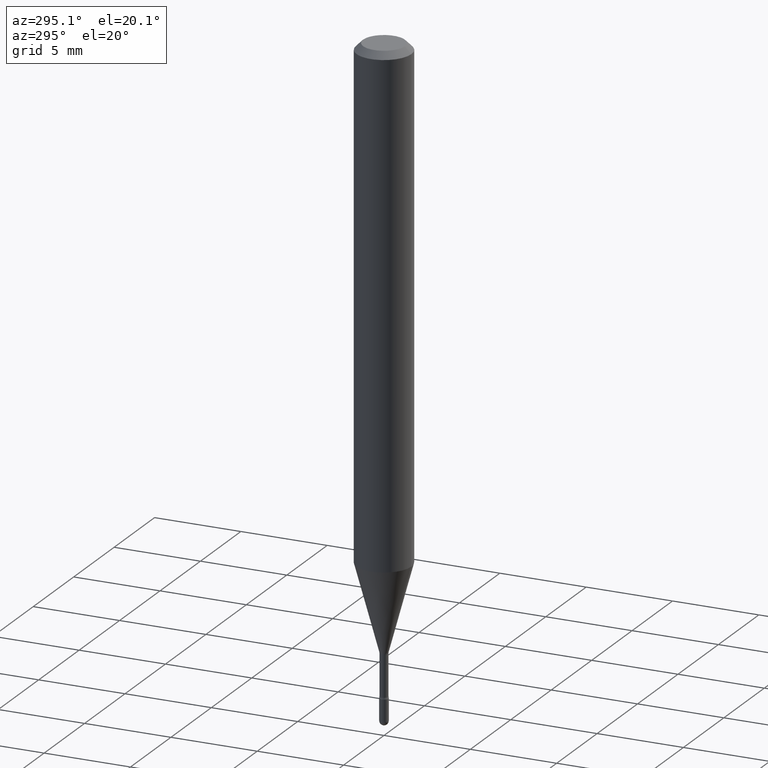
[diagram: clean part render]
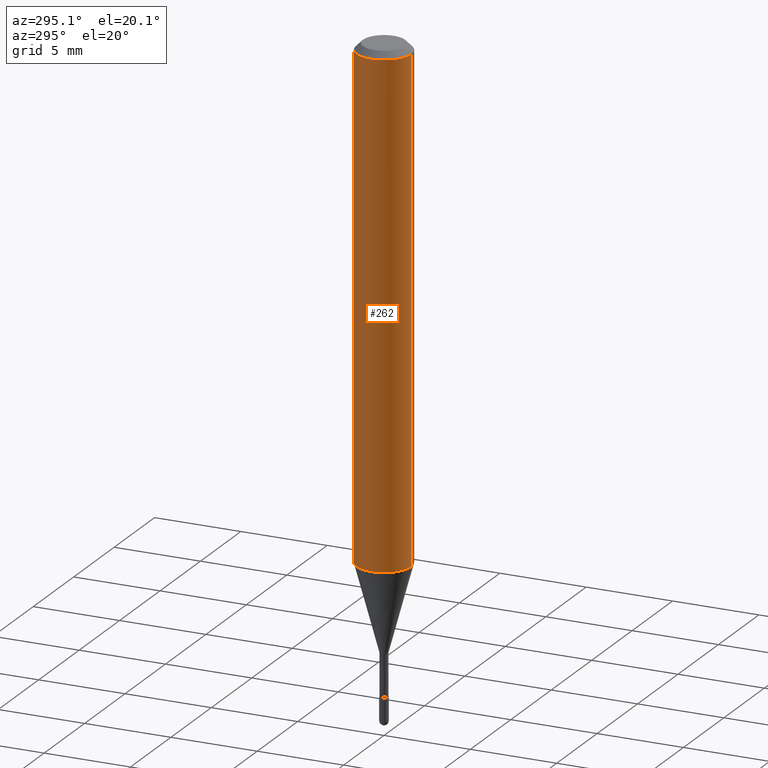
[diagram: same view with one face highlighted and labeled with its STEP entity id]
A machine part, auxiliary view. The second image highlights one B-rep face of the part: STEP entity #262.
In plain terms, the highlighted cylindrical surface (edge-blend (fillet) strip) has radius 1.5875 mm, axis along (-0, 0, 1).
Its self-contained STEP definition (entity closure, byte-faithful):
#31 = ORIENTED_EDGE ( 'NONE', *, *, #386, .F. ) ;
#46 = FACE_OUTER_BOUND ( 'NONE', #294, .T. ) ;
#63 = CARTESIAN_POINT ( 'NONE',  ( -4.364351673553916201E-16, -0.06250000000000000000, 6.962891176878747988E-16 ) ) ;
#89 = CYLINDRICAL_SURFACE ( 'NONE', #95, 0.06250000000000000000 ) ;
#95 = AXIS2_PLACEMENT_3D ( 'NONE', #266, #227, #477 ) ;
#106 = VECTOR ( 'NONE', #406, 39.37007874015748143 ) ;
#120 = AXIS2_PLACEMENT_3D ( 'NONE', #127, #173, #526 ) ;
#127 = CARTESIAN_POINT ( 'NONE',  ( 2.792328796693690568E-29, -3.986637440734242640E-15, -1.141828102118093380 ) ) ;
#130 = CARTESIAN_POINT ( 'NONE',  ( -4.364351673553637142E-16, -0.06250000000000398293, -1.141828102118092936 ) ) ;
#137 = LINE ( 'NONE', #409, #106 ) ;
#141 = VERTEX_POINT ( 'NONE', #265 ) ;
#143 = DIRECTION ( 'NONE',  ( -2.445489642016968435E-29, 3.491451500746060163E-15, 1.000000000000000000 ) ) ;
#173 = DIRECTION ( 'NONE',  ( -2.445489642016968435E-29, 3.491451500746060163E-15, 1.000000000000000000 ) ) ;
#181 = LINE ( 'NONE', #63, #271 ) ;
#188 = CARTESIAN_POINT ( 'NONE',  ( 4.440892098500903249E-16, 0.06249999999999600320, -1.141828102118093602 ) ) ;
#196 = AXIS2_PLACEMENT_3D ( 'NONE', #541, #143, #534 ) ;
#199 = EDGE_CURVE ( 'NONE', #423, #248, #395, .T. ) ;
#227 = DIRECTION ( 'NONE',  ( -2.445489642016968435E-29, 3.491451500746060163E-15, 1.000000000000000000 ) ) ;
#237 = DIRECTION ( 'NONE',  ( -2.445489642016968435E-29, 3.491451500746059769E-15, 1.000000000000000000 ) ) ;
#242 = ORIENTED_EDGE ( 'NONE', *, *, #340, .F. ) ;
#248 = VERTEX_POINT ( 'NONE', #130 ) ;
#252 = ORIENTED_EDGE ( 'NONE', *, *, #331, .T. ) ;
#262 = ADVANCED_FACE ( 'NONE', ( #46 ), #89, .T. ) ;
#265 = CARTESIAN_POINT ( 'NONE',  ( -4.364351673553912750E-16, -0.06250000000000005551, -0.01499999999999986587 ) ) ;
#266 = CARTESIAN_POINT ( 'NONE',  ( -1.169113584055446105E-44, 1.669184350826100908E-30, 4.780733988912460139E-16 ) ) ;
#271 = VECTOR ( 'NONE', #237, 39.37007874015748143 ) ;
#294 = EDGE_LOOP ( 'NONE', ( #242, #559, #252, #31 ) ) ;
#327 = CARTESIAN_POINT ( 'NONE',  ( 4.440892098500906207E-16, 0.06249999999999993755, -0.01500000000000030129 ) ) ;
#331 = EDGE_CURVE ( 'NONE', #248, #141, #181, .T. ) ;
#340 = EDGE_CURVE ( 'NONE', #423, #371, #137, .T. ) ;
#371 = VERTEX_POINT ( 'NONE', #327 ) ;
#386 = EDGE_CURVE ( 'NONE', #371, #141, #433, .T. ) ;
#395 = CIRCLE ( 'NONE', #120, 0.06250000000000000000 ) ;
#406 = DIRECTION ( 'NONE',  ( -2.445489642016968435E-29, 3.491451500746059769E-15, 1.000000000000000000 ) ) ;
#409 = CARTESIAN_POINT ( 'NONE',  ( 4.440892098500625669E-16, 0.06250000000000000000, 2.598576800946173277E-16 ) ) ;
#423 = VERTEX_POINT ( 'NONE', #188 ) ;
#433 = CIRCLE ( 'NONE', #196, 0.06250000000000000000 ) ;
#477 = DIRECTION ( 'NONE',  ( -6.982962677686265922E-15, -1.000000000000000000, 3.491451500746058980E-15 ) ) ;
#526 = DIRECTION ( 'NONE',  ( -6.982962677686265922E-15, -1.000000000000000000, 4.370956789862821150E-15 ) ) ;
#534 = DIRECTION ( 'NONE',  ( -6.982962677686265922E-15, -1.000000000000000000, 3.483106191921935554E-15 ) ) ;
#541 = CARTESIAN_POINT ( 'NONE',  ( 3.668234463025472883E-31, -5.237177251119118989E-17, -0.01500000000000008271 ) ) ;
#559 = ORIENTED_EDGE ( 'NONE', *, *, #199, .T. ) ;